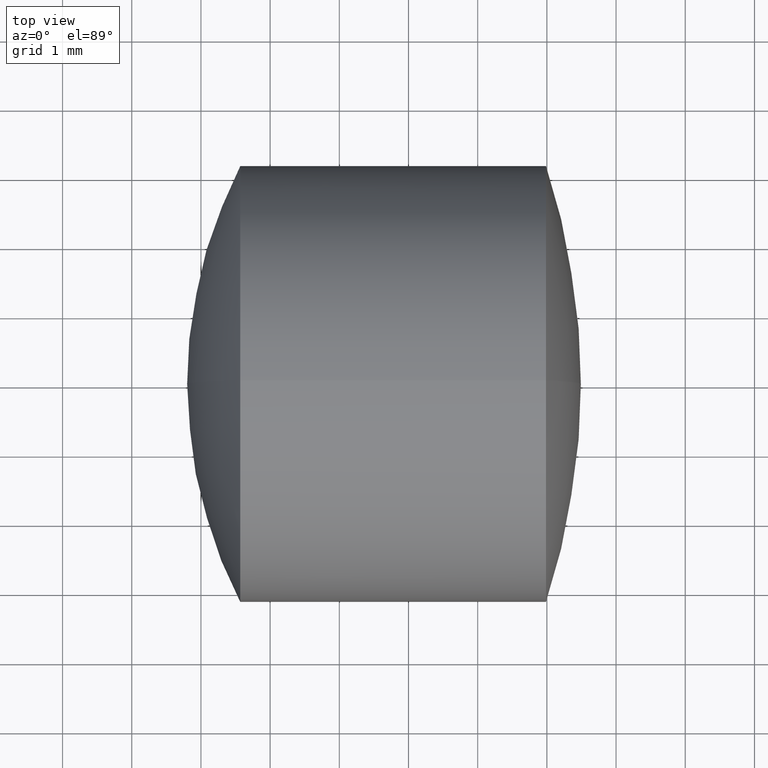
[diagram: clean part render]
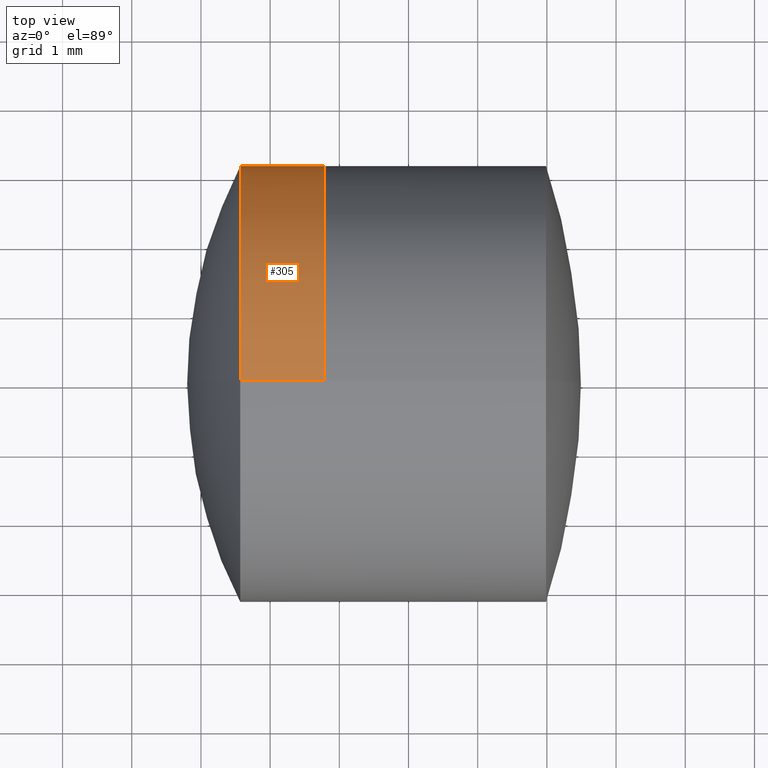
[diagram: same view with one face highlighted and labeled with its STEP entity id]
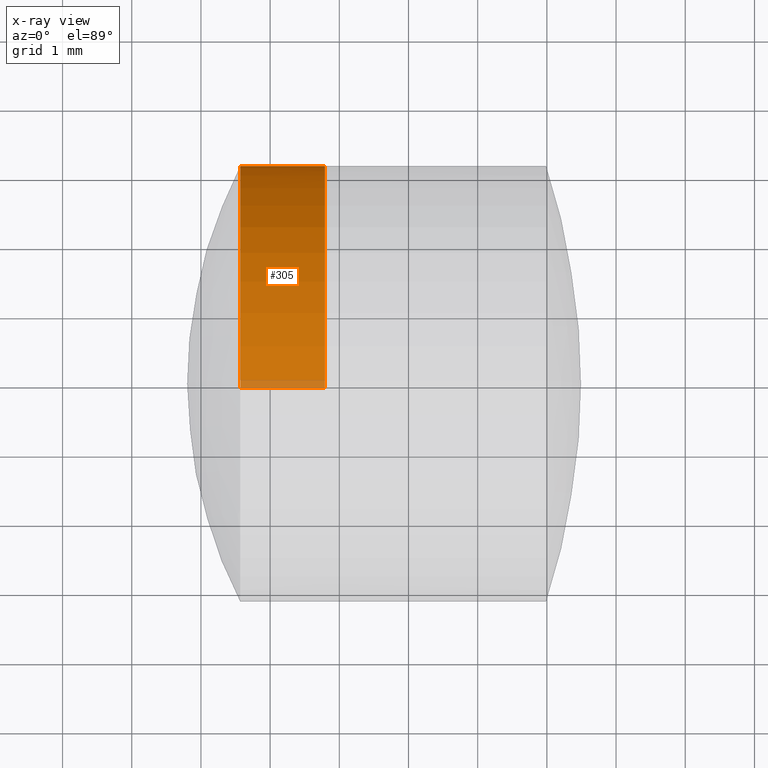
[diagram: x-ray of the same camera — body ghosted, the highlighted face saturated]
A machine part, top view. The second image highlights one B-rep face of the part: STEP entity #305.
The next image is the same camera in x-ray: the body ghosted, the highlighted face saturated — about 3% of this face is hidden behind the body in this view.
In plain terms, the highlighted cylindrical surface (partial cylindrical patch) has radius 3.15 mm, axis along (-1, -0, -0).
Its self-contained STEP definition (entity closure, byte-faithful):
#5 = DIRECTION ( 'NONE',  ( 0.0000000000000000000, 0.0000000000000000000, 1.000000000000000000 ) ) ;
#8 = ORIENTED_EDGE ( 'NONE', *, *, #229, .F. ) ;
#17 = VERTEX_POINT ( 'NONE', #340 ) ;
#21 = ORIENTED_EDGE ( 'NONE', *, *, #235, .T. ) ;
#23 = CARTESIAN_POINT ( 'NONE',  ( 2.568094163968829100, 0.0000000000000000000, 0.0000000000000000000 ) ) ;
#25 = DIRECTION ( 'NONE',  ( -1.000000000000000000, -0.0000000000000000000, -0.0000000000000000000 ) ) ;
#28 = CARTESIAN_POINT ( 'NONE',  ( 3.790307587695710600, 0.0000000000000000000, 0.0000000000000000000 ) ) ;
#34 = VERTEX_POINT ( 'NONE', #313 ) ;
#37 = CARTESIAN_POINT ( 'NONE',  ( 3.790307587695710600, 0.0000000000000000000, 3.149999999999999900 ) ) ;
#42 = LINE ( 'NONE', #137, #333 ) ;
#51 = DIRECTION ( 'NONE',  ( 0.0000000000000000000, 0.0000000000000000000, 1.000000000000000000 ) ) ;
#54 = LINE ( 'NONE', #163, #189 ) ;
#58 = DIRECTION ( 'NONE',  ( -1.000000000000000000, -0.0000000000000000000, -0.0000000000000000000 ) ) ;
#61 = VERTEX_POINT ( 'NONE', #37 ) ;
#62 = CIRCLE ( 'NONE', #116, 3.149999999999999900 ) ;
#74 = CARTESIAN_POINT ( 'NONE',  ( 2.568094163968829100, 3.857637417314162200E-016, -3.149999999999999900 ) ) ;
#110 = DIRECTION ( 'NONE',  ( -1.000000000000000000, -0.0000000000000000000, -0.0000000000000000000 ) ) ;
#115 = CARTESIAN_POINT ( 'NONE',  ( -0.8160621761658039000, 0.0000000000000000000, 0.0000000000000000000 ) ) ;
#116 = AXIS2_PLACEMENT_3D ( 'NONE', #23, #218, #51 ) ;
#121 = AXIS2_PLACEMENT_3D ( 'NONE', #28, #188, #5 ) ;
#137 = CARTESIAN_POINT ( 'NONE',  ( -0.8160621761658039000, 0.0000000000000000000, 3.149999999999999900 ) ) ;
#144 = EDGE_LOOP ( 'NONE', ( #201, #21, #341, #8 ) ) ;
#148 = VERTEX_POINT ( 'NONE', #74 ) ;
#163 = CARTESIAN_POINT ( 'NONE',  ( -0.8160621761658039000, 3.857637417314162700E-016, -3.149999999999999900 ) ) ;
#170 = AXIS2_PLACEMENT_3D ( 'NONE', #115, #58, #222 ) ;
#188 = DIRECTION ( 'NONE',  ( -1.000000000000000000, -0.0000000000000000000, -0.0000000000000000000 ) ) ;
#189 = VECTOR ( 'NONE', #25, 1000.000000000000000 ) ;
#201 = ORIENTED_EDGE ( 'NONE', *, *, #292, .T. ) ;
#205 = EDGE_CURVE ( 'NONE', #17, #148, #62, .T. ) ;
#218 = DIRECTION ( 'NONE',  ( -1.000000000000000000, -0.0000000000000000000, -0.0000000000000000000 ) ) ;
#222 = DIRECTION ( 'NONE',  ( 0.0000000000000000000, 0.0000000000000000000, 1.000000000000000000 ) ) ;
#229 = EDGE_CURVE ( 'NONE', #61, #17, #42, .T. ) ;
#235 = EDGE_CURVE ( 'NONE', #34, #148, #54, .T. ) ;
#241 = CYLINDRICAL_SURFACE ( 'NONE', #170, 3.149999999999999900 ) ;
#255 = CIRCLE ( 'NONE', #121, 3.149999999999999900 ) ;
#263 = FACE_OUTER_BOUND ( 'NONE', #144, .T. ) ;
#292 = EDGE_CURVE ( 'NONE', #61, #34, #255, .T. ) ;
#305 = ADVANCED_FACE ( 'NONE', ( #263 ), #241, .T. ) ;
#313 = CARTESIAN_POINT ( 'NONE',  ( 3.790307587695710600, 3.857637417314162700E-016, -3.149999999999999900 ) ) ;
#333 = VECTOR ( 'NONE', #110, 1000.000000000000000 ) ;
#340 = CARTESIAN_POINT ( 'NONE',  ( 2.568094163968829100, 0.0000000000000000000, 3.149999999999999900 ) ) ;
#341 = ORIENTED_EDGE ( 'NONE', *, *, #205, .F. ) ;